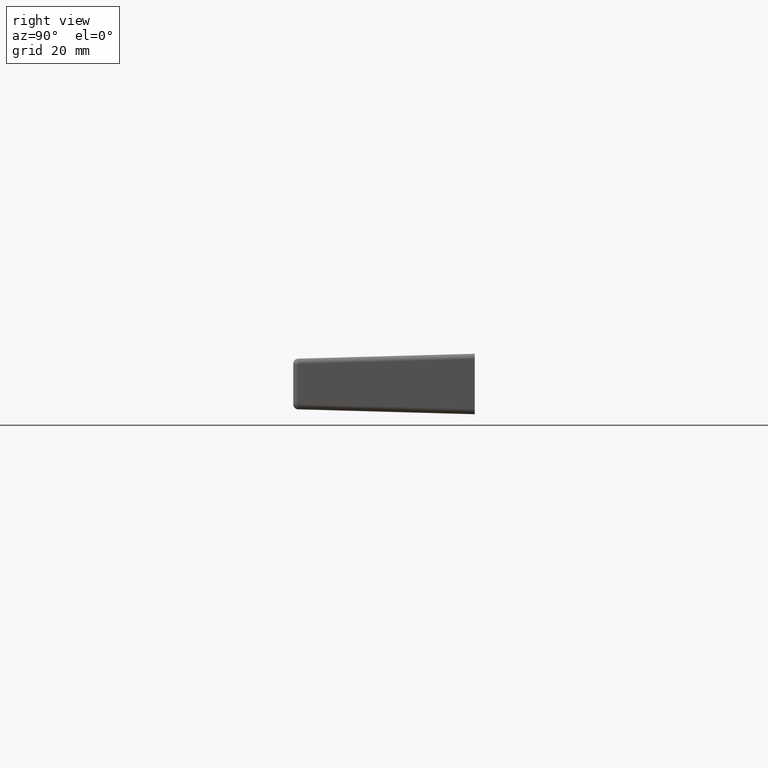
[diagram: clean part render]
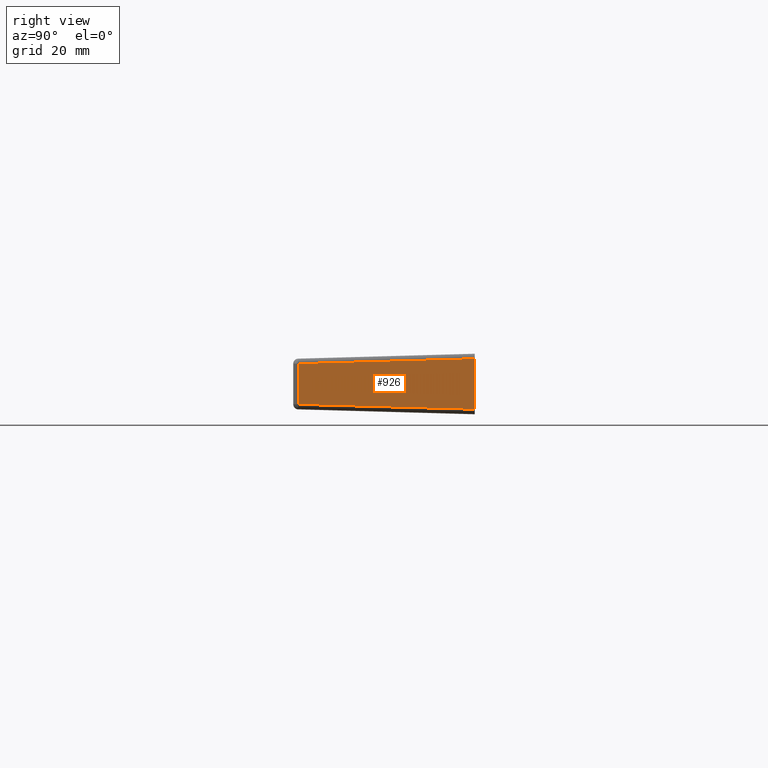
[diagram: same view with one face highlighted and labeled with its STEP entity id]
A machine part, right view. The second image highlights one B-rep face of the part: STEP entity #926.
In plain terms, the highlighted face is a freeform B-spline surface patch.
Its self-contained STEP definition (entity closure, byte-faithful):
#709=CARTESIAN_POINT('',(69.999600000000001,10.551718711853029,15.030082760075651));
#710=VERTEX_POINT('',#709);
#711=CARTESIAN_POINT('',(69.999600000000001,10.551718711853029,5.029312076350021));
#712=VERTEX_POINT('',#711);
#713=CARTESIAN_POINT('',(69.999600000000001,10.551718711853029,15.030082760075651));
#714=CARTESIAN_POINT('',(69.999600000000001,10.551718711853029,5.029312076350021));
#715=QUASI_UNIFORM_CURVE('',1,(#713,#714),.UNSPECIFIED.,.F.,.U.);
#716=EDGE_CURVE('',#710,#712,#715,.T.);
#899=CARTESIAN_POINT('',(70.048186037336492,12.301355181926629,4.529773600081358));
#900=CARTESIAN_POINT('',(68.978320458655730,-26.225677215539871,4.529773600081358));
#901=CARTESIAN_POINT('',(70.048186037336492,12.301355181926629,15.529621504585890));
#902=CARTESIAN_POINT('',(68.978320458655730,-26.225677215539871,15.529621504585890));
#903=B_SPLINE_SURFACE_WITH_KNOTS('',1,1,((#899,#901),(#900,#902)),.UNSPECIFIED.,.F.,.F.,.U.,(2,2),(2,2),(0.0,38.541884200333008),(0.0,10.999847904504531),.UNSPECIFIED.);
#904=CARTESIAN_POINT('',(69.026906522082101,-24.476039805948570,14.057089467914571));
#905=VERTEX_POINT('',#904);
#906=CARTESIAN_POINT('',(69.026906522082101,-24.476039805948570,6.002305368511101));
#907=VERTEX_POINT('',#906);
#908=CARTESIAN_POINT('',(69.026906522082101,-24.476039805948570,14.057089467914571));
#909=CARTESIAN_POINT('',(69.026906522082101,-24.476039805948570,6.002305368511101));
#910=QUASI_UNIFORM_CURVE('',1,(#908,#909),.UNSPECIFIED.,.F.,.U.);
#911=EDGE_CURVE('',#905,#907,#910,.T.);
#912=ORIENTED_EDGE('',*,*,#911,.T.);
#913=CARTESIAN_POINT('',(69.026906522082101,-24.476039805948570,6.002305368511101));
#914=CARTESIAN_POINT('',(69.999600000000001,10.551718711853029,5.029312076350021));
#915=QUASI_UNIFORM_CURVE('',1,(#913,#914),.UNSPECIFIED.,.F.,.U.);
#916=EDGE_CURVE('',#907,#712,#915,.T.);
#917=ORIENTED_EDGE('',*,*,#916,.T.);
#918=ORIENTED_EDGE('',*,*,#716,.F.);
#919=CARTESIAN_POINT('',(69.999600000000001,10.551718711853029,15.030082760075651));
#920=CARTESIAN_POINT('',(69.026906522082101,-24.476039805948570,14.057089467914571));
#921=QUASI_UNIFORM_CURVE('',1,(#919,#920),.UNSPECIFIED.,.F.,.U.);
#922=EDGE_CURVE('',#710,#905,#921,.T.);
#923=ORIENTED_EDGE('',*,*,#922,.T.);
#924=EDGE_LOOP('',(#912,#917,#918,#923));
#925=FACE_OUTER_BOUND('',#924,.T.);
#926=ADVANCED_FACE('',(#925),#903,.F.);